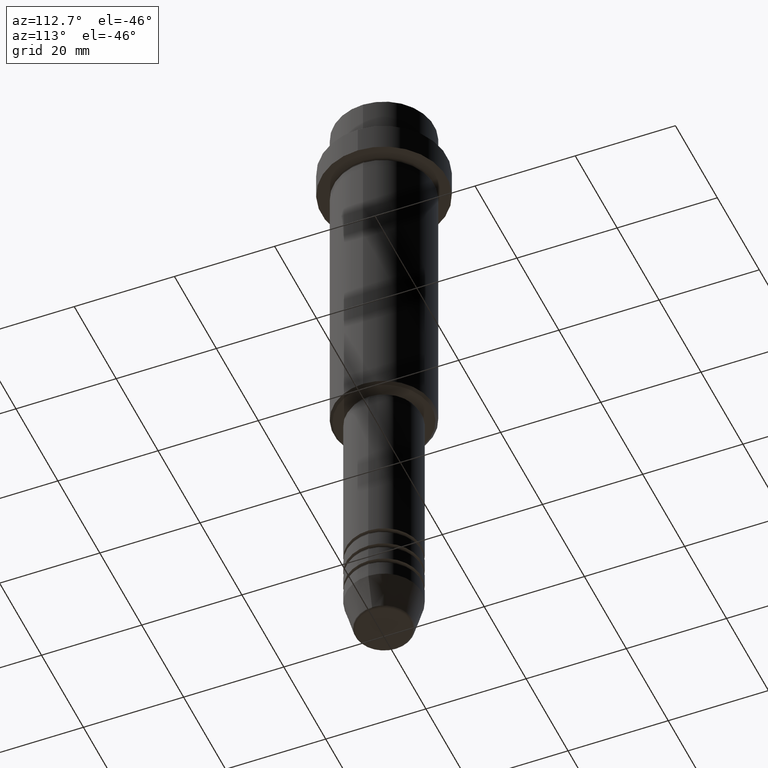
[diagram: clean part render]
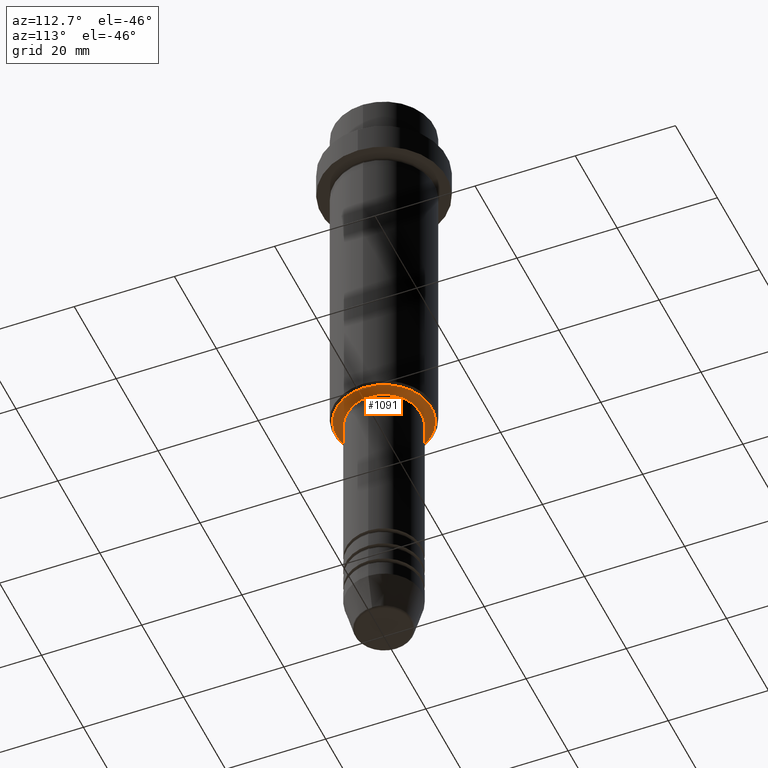
[diagram: same view with one face highlighted and labeled with its STEP entity id]
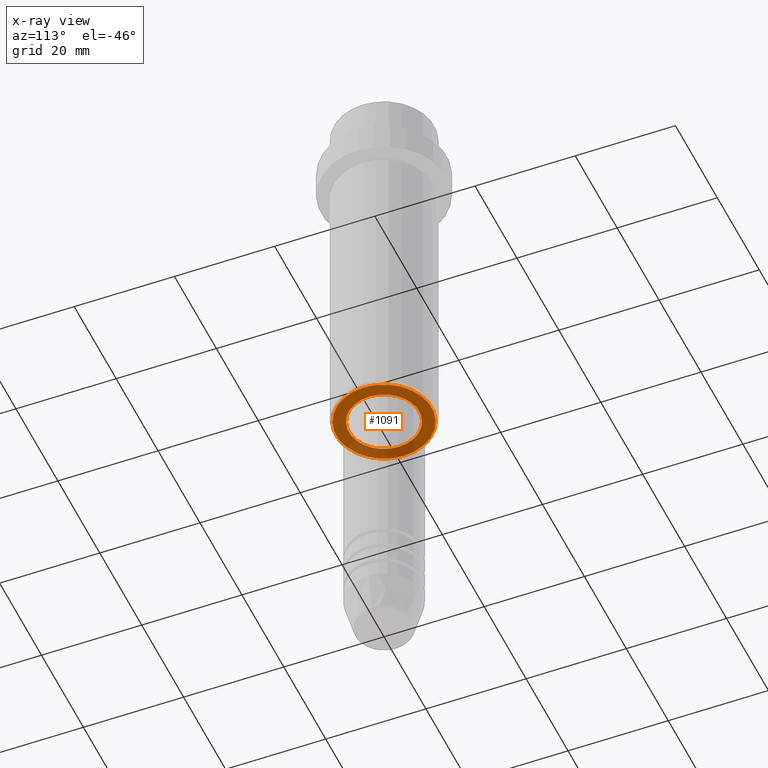
[diagram: x-ray of the same camera — body ghosted, the highlighted face saturated]
A machine part, auxiliary view. The second image highlights one B-rep face of the part: STEP entity #1091.
The next image is the same camera in x-ray: the body ghosted, the highlighted face saturated — about 26% of this face is hidden behind the body in this view.
In plain terms, the highlighted planar face has unit normal (0, 0, -1).
Its self-contained STEP definition (entity closure, byte-faithful):
#1 = CARTESIAN_POINT ( 'NONE',  ( 0.000000000000000000, 0.000000000000000000, -75.00000000000001421 ) ) ;
#2 = ORIENTED_EDGE ( 'NONE', *, *, #1200, .T. ) ;
#41 = AXIS2_PLACEMENT_3D ( 'NONE', #1, #450, #1222 ) ;
#78 = PLANE ( 'NONE',  #1407 ) ;
#115 = CARTESIAN_POINT ( 'NONE',  ( -6.999999999999993783, 8.572527594031465301E-16, -75.00000000000001421 ) ) ;
#122 = DIRECTION ( 'NONE',  ( 1.000000000000000000, 0.000000000000000000, 0.000000000000000000 ) ) ;
#171 = ORIENTED_EDGE ( 'NONE', *, *, #1057, .T. ) ;
#278 = CIRCLE ( 'NONE', #1149, 9.500000000000008882 ) ;
#450 = DIRECTION ( 'NONE',  ( -0.000000000000000000, -0.000000000000000000, 1.000000000000000000 ) ) ;
#465 = CIRCLE ( 'NONE', #41, 6.999999999999993783 ) ;
#477 = CARTESIAN_POINT ( 'NONE',  ( 0.000000000000000000, 0.000000000000000000, -75.00000000000001421 ) ) ;
#494 = FACE_OUTER_BOUND ( 'NONE', #802, .T. ) ;
#507 = DIRECTION ( 'NONE',  ( 0.000000000000000000, 0.000000000000000000, -1.000000000000000000 ) ) ;
#588 = CARTESIAN_POINT ( 'NONE',  ( 9.500000000000008882, 0.000000000000000000, -75.00000000000001421 ) ) ;
#606 = EDGE_LOOP ( 'NONE', ( #1233, #2 ) ) ;
#629 = CARTESIAN_POINT ( 'NONE',  ( -9.500000000000008882, 1.194030629168669864E-15, -75.00000000000001421 ) ) ;
#668 = CARTESIAN_POINT ( 'NONE',  ( 6.999999999999993783, 0.000000000000000000, -75.00000000000001421 ) ) ;
#682 = EDGE_CURVE ( 'NONE', #730, #1173, #465, .T. ) ;
#690 = AXIS2_PLACEMENT_3D ( 'NONE', #477, #1030, #803 ) ;
#730 = VERTEX_POINT ( 'NONE', #668 ) ;
#802 = EDGE_LOOP ( 'NONE', ( #1194, #171 ) ) ;
#803 = DIRECTION ( 'NONE',  ( -1.000000000000000000, 0.000000000000000000, 0.000000000000000000 ) ) ;
#813 = CARTESIAN_POINT ( 'NONE',  ( 0.000000000000000000, 10.00000000000000000, -75.00000000000001421 ) ) ;
#829 = DIRECTION ( 'NONE',  ( -1.000000000000000000, 0.000000000000000000, -0.000000000000000000 ) ) ;
#836 = DIRECTION ( 'NONE',  ( 0.000000000000000000, 0.000000000000000000, -1.000000000000000000 ) ) ;
#848 = EDGE_CURVE ( 'NONE', #958, #1257, #1133, .T. ) ;
#958 = VERTEX_POINT ( 'NONE', #588 ) ;
#978 = DIRECTION ( 'NONE',  ( -0.000000000000000000, -0.000000000000000000, 1.000000000000000000 ) ) ;
#1030 = DIRECTION ( 'NONE',  ( 0.000000000000000000, 0.000000000000000000, -1.000000000000000000 ) ) ;
#1057 = EDGE_CURVE ( 'NONE', #1257, #958, #278, .T. ) ;
#1091 = ADVANCED_FACE ( 'NONE', ( #494, #1168 ), #78, .T. ) ;
#1099 = CARTESIAN_POINT ( 'NONE',  ( 0.000000000000000000, 0.000000000000000000, -75.00000000000001421 ) ) ;
#1133 = CIRCLE ( 'NONE', #690, 9.500000000000008882 ) ;
#1149 = AXIS2_PLACEMENT_3D ( 'NONE', #1263, #836, #1390 ) ;
#1168 = FACE_BOUND ( 'NONE', #606, .T. ) ;
#1173 = VERTEX_POINT ( 'NONE', #115 ) ;
#1194 = ORIENTED_EDGE ( 'NONE', *, *, #848, .T. ) ;
#1200 = EDGE_CURVE ( 'NONE', #1173, #730, #1269, .T. ) ;
#1222 = DIRECTION ( 'NONE',  ( 1.000000000000000000, 0.000000000000000000, 0.000000000000000000 ) ) ;
#1233 = ORIENTED_EDGE ( 'NONE', *, *, #682, .T. ) ;
#1257 = VERTEX_POINT ( 'NONE', #629 ) ;
#1263 = CARTESIAN_POINT ( 'NONE',  ( 0.000000000000000000, 0.000000000000000000, -75.00000000000001421 ) ) ;
#1269 = CIRCLE ( 'NONE', #1412, 6.999999999999993783 ) ;
#1390 = DIRECTION ( 'NONE',  ( -1.000000000000000000, 0.000000000000000000, 0.000000000000000000 ) ) ;
#1407 = AXIS2_PLACEMENT_3D ( 'NONE', #813, #507, #829 ) ;
#1412 = AXIS2_PLACEMENT_3D ( 'NONE', #1099, #978, #122 ) ;